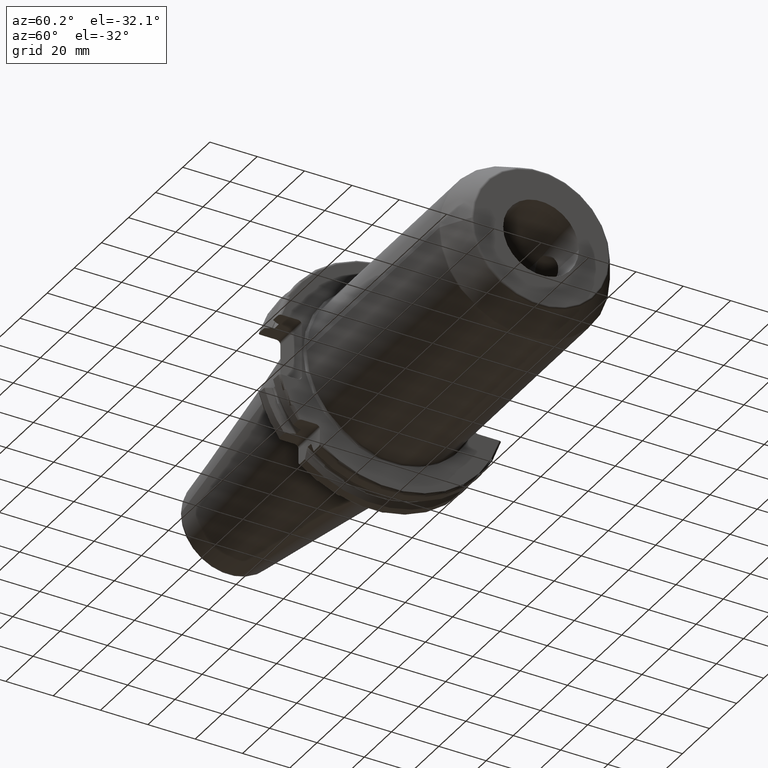
[diagram: clean part render]
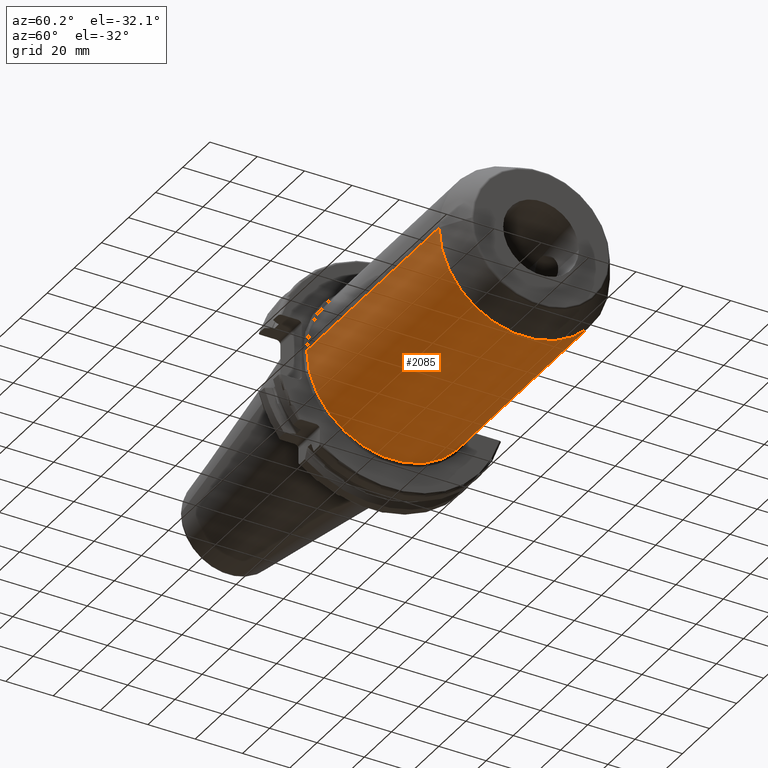
[diagram: same view with one face highlighted and labeled with its STEP entity id]
A machine part, auxiliary view. The second image highlights one B-rep face of the part: STEP entity #2085.
In plain terms, the highlighted cylindrical surface (partial cylindrical patch) has radius 36 mm, axis along (1, 0, 0).
Its self-contained STEP definition (entity closure, byte-faithful):
#190=DIRECTION('',(1.E0,0.E0,0.E0));
#191=VECTOR('',#190,1.19E1);
#192=CARTESIAN_POINT('',(2.005E1,3.53E1,-7.064700984472E0));
#193=LINE('',#192,#191);
#194=CARTESIAN_POINT('',(2.005E1,0.E0,0.E0));
#195=DIRECTION('',(1.E0,0.E0,0.E0));
#196=DIRECTION('',(0.E0,-1.E0,0.E0));
#197=AXIS2_PLACEMENT_3D('',#194,#195,#196);
#199=DIRECTION('',(-1.E0,0.E0,-1.085437181624E-13));
#200=VECTOR('',#199,9.768205080757E1);
#201=CARTESIAN_POINT('',(1.177320508076E2,-3.6E1,3.166704809412E-12));
#202=LINE('',#201,#200);
#203=CARTESIAN_POINT('',(1.177320508076E2,0.E0,0.E0));
#204=DIRECTION('',(-1.E0,0.E0,0.E0));
#205=DIRECTION('',(0.E0,1.E0,0.E0));
#206=AXIS2_PLACEMENT_3D('',#203,#204,#205);
#208=DIRECTION('',(-1.E0,0.E0,1.063032301368E-12));
#209=VECTOR('',#208,2.982050807569E0);
#210=CARTESIAN_POINT('',(1.177320508076E2,3.6E1,-3.167808499080E-12));
#211=LINE('',#210,#209);
#212=CARTESIAN_POINT('',(9.725E1,3.6E1,0.E0));
#213=CARTESIAN_POINT('',(9.725E1,3.6E1,-4.328834389599E-1));
#214=CARTESIAN_POINT('',(9.731332581448E1,3.598452537154E1,-1.290918162682E0));
#215=CARTESIAN_POINT('',(9.760153227988E1,3.591556442086E1,-2.569036699682E0));
#216=CARTESIAN_POINT('',(9.807657566907E1,3.580666561365E1,-3.789088749444E0));
#217=CARTESIAN_POINT('',(9.873453989315E1,3.566581454736E1,-4.935264517395E0));
#218=CARTESIAN_POINT('',(9.955729228718E1,3.550610007096E1,-5.970043130263E0));
#219=CARTESIAN_POINT('',(1.005342203512E2,3.534067363575E1,-6.875465989838E0));
#220=CARTESIAN_POINT('',(1.016248015253E2,3.518732857248E1,-7.615811502948E0));
#221=CARTESIAN_POINT('',(1.028173701694E2,3.505813742078E1,-8.185667869903E0));
#222=CARTESIAN_POINT('',(1.040615571136E2,3.496650451700E1,-8.565641371978E0));
#223=CARTESIAN_POINT('',(1.053539772870E2,3.491841061205E1,-8.758186671516E0));
#224=CARTESIAN_POINT('',(1.066453256740E2,3.491839555304E1,-8.758247219880E0));
#225=CARTESIAN_POINT('',(1.079378755391E2,3.496647475392E1,-8.565759675358E0));
#226=CARTESIAN_POINT('',(1.091818502060E2,3.505806479913E1,-8.185981286862E0));
#227=CARTESIAN_POINT('',(1.103747869267E2,3.518727796591E1,-7.616034282048E0));
#228=CARTESIAN_POINT('',(1.114649940874E2,3.534055100123E1,-6.876105921399E0));
#229=CARTESIAN_POINT('',(1.124425044220E2,3.550606222511E1,-5.970248716114E0));
#230=CARTESIAN_POINT('',(1.132647757185E2,3.566567593939E1,-4.936265025317E0));
#231=CARTESIAN_POINT('',(1.139233077076E2,3.580663737730E1,-3.789381605254E0));
#232=CARTESIAN_POINT('',(1.143982673046E2,3.591551806470E1,-2.569688576262E0));
#233=CARTESIAN_POINT('',(1.146867031033E2,3.598453179788E1,-1.290925115540E0));
#234=CARTESIAN_POINT('',(1.1475E2,3.6E1,-4.328765049027E-1));
#235=CARTESIAN_POINT('',(1.1475E2,3.6E1,0.E0));
#237=DIRECTION('',(-1.E0,0.E0,0.E0));
#238=VECTOR('',#237,1.05E1);
#239=CARTESIAN_POINT('',(9.725E1,3.6E1,0.E0));
#240=LINE('',#239,#238);
#241=CARTESIAN_POINT('',(6.925E1,3.6E1,0.E0));
#242=CARTESIAN_POINT('',(6.925E1,3.6E1,-4.328834389599E-1));
#243=CARTESIAN_POINT('',(6.931332581448E1,3.598452537154E1,-1.290918162682E0));
#244=CARTESIAN_POINT('',(6.960153227988E1,3.591556442086E1,-2.569036699682E0));
#245=CARTESIAN_POINT('',(7.007657566907E1,3.580666561365E1,-3.789088749444E0));
#246=CARTESIAN_POINT('',(7.073453989315E1,3.566581454736E1,-4.935264517395E0));
#247=CARTESIAN_POINT('',(7.155729228718E1,3.550610007096E1,-5.970043130263E0));
#248=CARTESIAN_POINT('',(7.253422035116E1,3.534067363575E1,-6.875465989838E0));
#249=CARTESIAN_POINT('',(7.362480152533E1,3.518732857248E1,-7.615811502948E0));
#250=CARTESIAN_POINT('',(7.481737016936E1,3.505813742078E1,-8.185667869903E0));
#251=CARTESIAN_POINT('',(7.606155711364E1,3.496650451700E1,-8.565641371978E0));
#252=CARTESIAN_POINT('',(7.735397728699E1,3.491841061205E1,-8.758186671516E0));
#253=CARTESIAN_POINT('',(7.864532567403E1,3.491839555304E1,-8.758247219880E0));
#254=CARTESIAN_POINT('',(7.993787553910E1,3.496647475392E1,-8.565759675358E0));
#255=CARTESIAN_POINT('',(8.118185020596E1,3.505806479913E1,-8.185981286862E0));
#256=CARTESIAN_POINT('',(8.237478692667E1,3.518727796591E1,-7.616034282048E0));
#257=CARTESIAN_POINT('',(8.346499408743E1,3.534055100123E1,-6.876105921399E0));
#258=CARTESIAN_POINT('',(8.444250442197E1,3.550606222511E1,-5.970248716114E0));
#259=CARTESIAN_POINT('',(8.526477571850E1,3.566567593939E1,-4.936265025317E0));
#260=CARTESIAN_POINT('',(8.592330770755E1,3.580663737730E1,-3.789381605254E0));
#261=CARTESIAN_POINT('',(8.639826730456E1,3.591551806470E1,-2.569688576262E0));
#262=CARTESIAN_POINT('',(8.668670310327E1,3.598453179788E1,-1.290925115540E0));
#263=CARTESIAN_POINT('',(8.675E1,3.6E1,-4.328765049027E-1));
#264=CARTESIAN_POINT('',(8.675E1,3.6E1,0.E0));
#266=DIRECTION('',(-1.E0,0.E0,0.E0));
#267=VECTOR('',#266,3.73E1);
#268=CARTESIAN_POINT('',(6.925E1,3.6E1,0.E0));
#269=LINE('',#268,#267);
#270=CARTESIAN_POINT('',(3.195E1,0.E0,0.E0));
#271=DIRECTION('',(1.E0,0.E0,0.E0));
#272=DIRECTION('',(0.E0,9.805555555556E-1,-1.962416940131E-1));
#273=AXIS2_PLACEMENT_3D('',#270,#271,#272);
#284=CARTESIAN_POINT('',(8.675E1,3.6E1,0.E0));
#307=CARTESIAN_POINT('',(6.925E1,3.6E1,0.E0));
#1800=CARTESIAN_POINT('',(1.1475E2,3.6E1,0.E0));
#1802=VERTEX_POINT('',#1800);
#1804=CARTESIAN_POINT('',(9.725E1,3.6E1,0.E0));
#1806=VERTEX_POINT('',#1804);
#1809=CARTESIAN_POINT('',(1.177320508076E2,3.6E1,0.E0));
#1810=CARTESIAN_POINT('',(1.177320508076E2,-3.6E1,0.E0));
#1811=VERTEX_POINT('',#1809);
#1812=VERTEX_POINT('',#1810);
#1825=CARTESIAN_POINT('',(2.005E1,-3.6E1,-7.436068182970E-12));
#1826=VERTEX_POINT('',#1825);
#1827=VERTEX_POINT('',#284);
#1828=VERTEX_POINT('',#307);
#1858=CARTESIAN_POINT('',(3.195E1,3.6E1,1.421085471520E-14));
#1859=VERTEX_POINT('',#1858);
#1860=CARTESIAN_POINT('',(2.005E1,3.53E1,-7.064700984472E0));
#1861=CARTESIAN_POINT('',(3.195E1,3.53E1,-7.064700984472E0));
#1862=VERTEX_POINT('',#1860);
#1863=VERTEX_POINT('',#1861);
#2060=CARTESIAN_POINT('',(1.35025E1,0.E0,0.E0));
#2061=DIRECTION('',(1.E0,0.E0,0.E0));
#2062=DIRECTION('',(0.E0,-1.E0,0.E0));
#2063=AXIS2_PLACEMENT_3D('',#2060,#2061,#2062);
#2064=CYLINDRICAL_SURFACE('',#2063,3.6E1);
#2065=ORIENTED_EDGE('',*,*,#2018,.F.);
#2066=ORIENTED_EDGE('',*,*,#2049,.F.);
#2068=ORIENTED_EDGE('',*,*,#2067,.F.);
#2070=ORIENTED_EDGE('',*,*,#2069,.F.);
#2072=ORIENTED_EDGE('',*,*,#2071,.T.);
#2074=ORIENTED_EDGE('',*,*,#2073,.F.);
#2076=ORIENTED_EDGE('',*,*,#2075,.T.);
#2078=ORIENTED_EDGE('',*,*,#2077,.F.);
#2080=ORIENTED_EDGE('',*,*,#2079,.T.);
#2082=ORIENTED_EDGE('',*,*,#2081,.F.);
#2083=EDGE_LOOP('',(#2065,#2066,#2068,#2070,#2072,#2074,#2076,#2078,#2080,
#2082));
#2084=FACE_OUTER_BOUND('',#2083,.F.);
#2085=ADVANCED_FACE('',(#2084),#2064,.T.);
#198=CIRCLE('',#197,3.6E1);
#207=CIRCLE('',#206,3.6E1);
#236=B_SPLINE_CURVE_WITH_KNOTS('',3,(#212,#213,#214,#215,#216,#217,#218,#219,
#220,#221,#222,#223,#224,#225,#226,#227,#228,#229,#230,#231,#232,#233,#234,
#235),.UNSPECIFIED.,.F.,.F.,(4,1,1,1,1,1,1,1,1,1,1,1,1,1,1,1,1,1,1,1,1,4),(0.E0,
4.761904761905E-2,9.523809523810E-2,1.428571428571E-1,1.904761904762E-1,
2.380952380952E-1,2.857142857143E-1,3.333333333333E-1,3.809523809524E-1,
4.285714285714E-1,4.761904761905E-1,5.238095238095E-1,5.714285714286E-1,
6.190476190476E-1,6.666666666667E-1,7.142857142857E-1,7.619047619048E-1,
8.095238095238E-1,8.571428571429E-1,9.047619047619E-1,9.523809523810E-1,1.E0),
.UNSPECIFIED.);
#265=B_SPLINE_CURVE_WITH_KNOTS('',3,(#241,#242,#243,#244,#245,#246,#247,#248,
#249,#250,#251,#252,#253,#254,#255,#256,#257,#258,#259,#260,#261,#262,#263,
#264),.UNSPECIFIED.,.F.,.F.,(4,1,1,1,1,1,1,1,1,1,1,1,1,1,1,1,1,1,1,1,1,4),(0.E0,
4.761904761905E-2,9.523809523810E-2,1.428571428571E-1,1.904761904762E-1,
2.380952380952E-1,2.857142857143E-1,3.333333333333E-1,3.809523809524E-1,
4.285714285714E-1,4.761904761905E-1,5.238095238095E-1,5.714285714286E-1,
6.190476190476E-1,6.666666666667E-1,7.142857142857E-1,7.619047619048E-1,
8.095238095238E-1,8.571428571429E-1,9.047619047619E-1,9.523809523810E-1,1.E0),
.UNSPECIFIED.);
#274=CIRCLE('',#273,3.6E1);
#2018=EDGE_CURVE('',#1862,#1863,#193,.T.);
#2049=EDGE_CURVE('',#1826,#1862,#198,.T.);
#2067=EDGE_CURVE('',#1812,#1826,#202,.T.);
#2069=EDGE_CURVE('',#1811,#1812,#207,.T.);
#2071=EDGE_CURVE('',#1811,#1802,#211,.T.);
#2073=EDGE_CURVE('',#1806,#1802,#236,.T.);
#2075=EDGE_CURVE('',#1806,#1827,#240,.T.);
#2077=EDGE_CURVE('',#1828,#1827,#265,.T.);
#2079=EDGE_CURVE('',#1828,#1859,#269,.T.);
#2081=EDGE_CURVE('',#1863,#1859,#274,.T.);